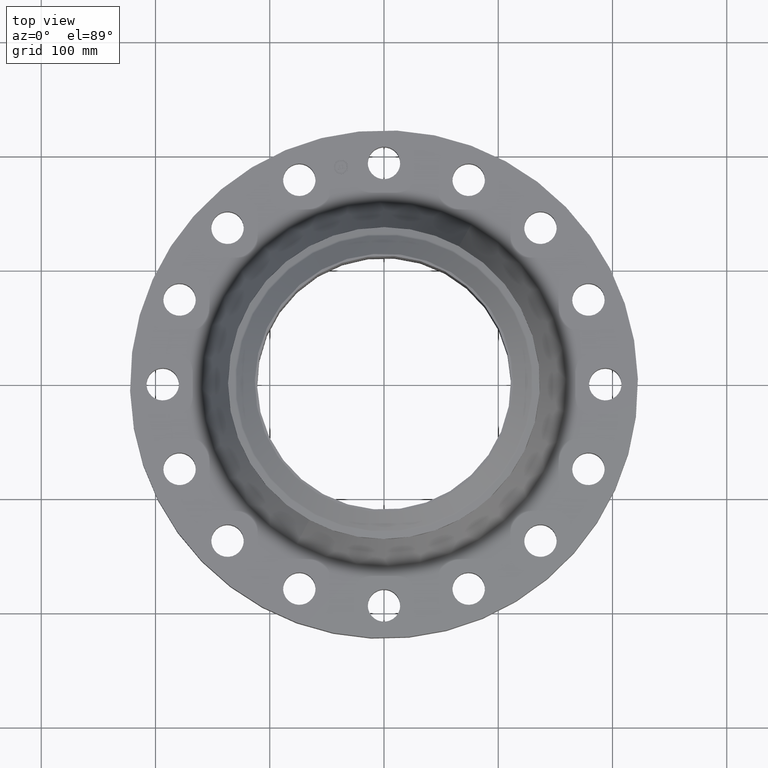
[diagram: clean part render]
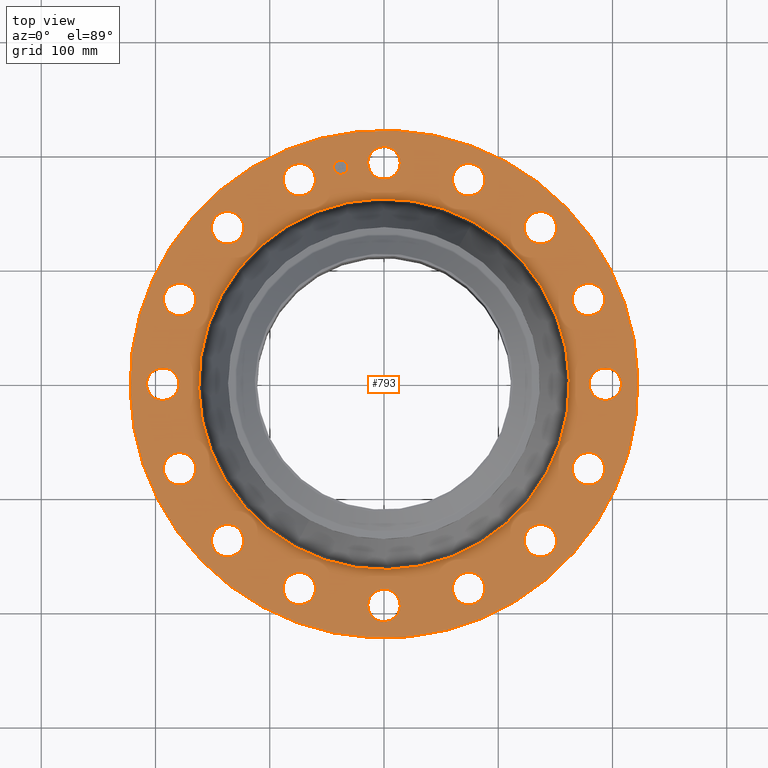
[diagram: same view with one face highlighted and labeled with its STEP entity id]
A machine part, top view. The second image highlights one B-rep face of the part: STEP entity #793.
In plain terms, the highlighted planar face has unit normal (0, 0, -1).
Its self-contained STEP definition (entity closure, byte-faithful):
#65=AXIS2_PLACEMENT_3D('Circle Axis2P3D',#63,#64,$) ;
#463=AXIS2_PLACEMENT_3D('Plane Axis2P3D',#460,#461,#462) ;
#467=AXIS2_PLACEMENT_3D('Circle Axis2P3D',#465,#466,$) ;
#476=AXIS2_PLACEMENT_3D('Circle Axis2P3D',#474,#475,$) ;
#489=AXIS2_PLACEMENT_3D('Circle Axis2P3D',#487,#488,$) ;
#498=AXIS2_PLACEMENT_3D('Circle Axis2P3D',#496,#497,$) ;
#507=AXIS2_PLACEMENT_3D('Circle Axis2P3D',#505,#506,$) ;
#516=AXIS2_PLACEMENT_3D('Circle Axis2P3D',#514,#515,$) ;
#525=AXIS2_PLACEMENT_3D('Circle Axis2P3D',#523,#524,$) ;
#534=AXIS2_PLACEMENT_3D('Circle Axis2P3D',#532,#533,$) ;
#543=AXIS2_PLACEMENT_3D('Circle Axis2P3D',#541,#542,$) ;
#552=AXIS2_PLACEMENT_3D('Circle Axis2P3D',#550,#551,$) ;
#561=AXIS2_PLACEMENT_3D('Circle Axis2P3D',#559,#560,$) ;
#570=AXIS2_PLACEMENT_3D('Circle Axis2P3D',#568,#569,$) ;
#579=AXIS2_PLACEMENT_3D('Circle Axis2P3D',#577,#578,$) ;
#588=AXIS2_PLACEMENT_3D('Circle Axis2P3D',#586,#587,$) ;
#597=AXIS2_PLACEMENT_3D('Circle Axis2P3D',#595,#596,$) ;
#606=AXIS2_PLACEMENT_3D('Circle Axis2P3D',#604,#605,$) ;
#615=AXIS2_PLACEMENT_3D('Circle Axis2P3D',#613,#614,$) ;
#624=AXIS2_PLACEMENT_3D('Circle Axis2P3D',#622,#623,$) ;
#633=AXIS2_PLACEMENT_3D('Circle Axis2P3D',#631,#632,$) ;
#642=AXIS2_PLACEMENT_3D('Circle Axis2P3D',#640,#641,$) ;
#651=AXIS2_PLACEMENT_3D('Circle Axis2P3D',#649,#650,$) ;
#660=AXIS2_PLACEMENT_3D('Circle Axis2P3D',#658,#659,$) ;
#669=AXIS2_PLACEMENT_3D('Circle Axis2P3D',#667,#668,$) ;
#678=AXIS2_PLACEMENT_3D('Circle Axis2P3D',#676,#677,$) ;
#687=AXIS2_PLACEMENT_3D('Circle Axis2P3D',#685,#686,$) ;
#696=AXIS2_PLACEMENT_3D('Circle Axis2P3D',#694,#695,$) ;
#705=AXIS2_PLACEMENT_3D('Circle Axis2P3D',#703,#704,$) ;
#714=AXIS2_PLACEMENT_3D('Circle Axis2P3D',#712,#713,$) ;
#723=AXIS2_PLACEMENT_3D('Circle Axis2P3D',#721,#722,$) ;
#732=AXIS2_PLACEMENT_3D('Circle Axis2P3D',#730,#731,$) ;
#741=AXIS2_PLACEMENT_3D('Circle Axis2P3D',#739,#740,$) ;
#750=AXIS2_PLACEMENT_3D('Circle Axis2P3D',#748,#749,$) ;
#759=AXIS2_PLACEMENT_3D('Circle Axis2P3D',#757,#758,$) ;
#768=AXIS2_PLACEMENT_3D('Circle Axis2P3D',#766,#767,$) ;
#777=AXIS2_PLACEMENT_3D('Circle Axis2P3D',#775,#776,$) ;
#786=AXIS2_PLACEMENT_3D('Circle Axis2P3D',#784,#785,$) ;
#46=CARTESIAN_POINT('Vertex',(-0.49144623466,7.89347830165,1.80999999999)) ;
#60=CARTESIAN_POINT('Vertex',(0.49144623466,7.35652169841,1.80999999999)) ;
#63=CARTESIAN_POINT('Axis2P3D Location',(0.,7.62500000003,1.80999999999)) ;
#106=CARTESIAN_POINT('Control Point',(0.49144623466,7.35652169841,1.80999999999)) ;
#107=CARTESIAN_POINT('Control Point',(0.449273761659,7.27932550439,1.80999999999)) ;
#108=CARTESIAN_POINT('Control Point',(0.391943851407,7.21040985608,1.80999999999)) ;
#109=CARTESIAN_POINT('Control Point',(0.321612228624,7.1537563852,1.80999999999)) ;
#110=CARTESIAN_POINT('Control Point',(0.162524834083,7.07107905055,1.80999999999)) ;
#111=CARTESIAN_POINT('Control Point',(-0.0160133470284,7.05469434265,1.81)) ;
#112=CARTESIAN_POINT('Control Point',(-0.105805367865,7.06436625662,1.81)) ;
#113=CARTESIAN_POINT('Control Point',(-0.27675884733,7.11839632812,1.81)) ;
#114=CARTESIAN_POINT('Control Point',(-0.414590143954,7.23305614862,1.81)) ;
#115=CARTESIAN_POINT('Control Point',(-0.471243614831,7.30338777141,1.81)) ;
#116=CARTESIAN_POINT('Control Point',(-0.553920949483,7.46247516595,1.81)) ;
#117=CARTESIAN_POINT('Control Point',(-0.570305657377,7.64101334706,1.81000000001)) ;
#118=CARTESIAN_POINT('Control Point',(-0.56063374341,7.7308053679,1.81000000001)) ;
#119=CARTESIAN_POINT('Control Point',(-0.533618707661,7.81628210763,1.81000000001)) ;
#120=CARTESIAN_POINT('Control Point',(-0.49144623466,7.89347830165,1.81000000001)) ;
#460=CARTESIAN_POINT('Axis2P3D Location',(0.,8.75000000003,1.81000000001)) ;
#465=CARTESIAN_POINT('Axis2P3D Location',(-1.28132675074E-011,3.32332586647E-013,1.81000000001)) ;
#469=CARTESIAN_POINT('Vertex',(4.1949734628,7.67884741657,1.81000000002)) ;
#471=CARTESIAN_POINT('Vertex',(-4.1949734628,-7.67884741657,1.81000000002)) ;
#474=CARTESIAN_POINT('Axis2P3D Location',(1.28132675074E-011,-1.36659187903E-011,1.81000000001)) ;
#487=CARTESIAN_POINT('Axis2P3D Location',(4.36664877485E-011,-3.05208876545E-011,1.81000000001)) ;
#491=CARTESIAN_POINT('Vertex',(-3.06143875276,-5.6039260477,1.81000000001)) ;
#493=CARTESIAN_POINT('Vertex',(3.06143875276,5.6039260477,1.81000000001)) ;
#496=CARTESIAN_POINT('Axis2P3D Location',(-4.36664877485E-011,1.71873014508E-011,1.81000000001)) ;
#505=CARTESIAN_POINT('Axis2P3D Location',(2.91796117182,7.04458143543,1.81000000001)) ;
#509=CARTESIAN_POINT('Vertex',(3.26925609136,6.60847149572,1.81000000001)) ;
#511=CARTESIAN_POINT('Vertex',(2.56666625225,7.48069137512,1.80999999999)) ;
#514=CARTESIAN_POINT('Axis2P3D Location',(2.91796117181,7.04458143543,1.81000000001)) ;
#523=CARTESIAN_POINT('Axis2P3D Location',(5.39168920655,5.39168920656,1.81000000001)) ;
#527=CARTESIAN_POINT('Vertex',(5.54935134401,4.85434141378,1.80999999999)) ;
#529=CARTESIAN_POINT('Vertex',(5.23402706913,5.92903699936,1.80999999999)) ;
#532=CARTESIAN_POINT('Axis2P3D Location',(5.3916892066,5.39168920658,1.81000000001)) ;
#541=CARTESIAN_POINT('Axis2P3D Location',(7.0445814354,2.91796117181,1.81000000001)) ;
#545=CARTESIAN_POINT('Vertex',(6.98460815951,2.3611818563,1.81000000001)) ;
#547=CARTESIAN_POINT('Vertex',(7.10455471132,3.47474048731,1.80999999999)) ;
#550=CARTESIAN_POINT('Axis2P3D Location',(7.0445814354,2.91796117181,1.81000000001)) ;
#559=CARTESIAN_POINT('Axis2P3D Location',(7.62500000004,-1.36659187903E-011,1.81000000001)) ;
#563=CARTESIAN_POINT('Vertex',(7.35652169841,-0.49144623466,1.80999999999)) ;
#565=CARTESIAN_POINT('Vertex',(7.89347830165,0.49144623466,1.80999999999)) ;
#568=CARTESIAN_POINT('Axis2P3D Location',(7.62500000002,3.32332586647E-013,1.81000000001)) ;
#577=CARTESIAN_POINT('Axis2P3D Location',(7.04458143544,-2.91796117178,1.81000000001)) ;
#581=CARTESIAN_POINT('Vertex',(6.60847149577,-3.26925609133,1.81000000001)) ;
#583=CARTESIAN_POINT('Vertex',(7.48069137512,-2.56666625225,1.80999999999)) ;
#586=CARTESIAN_POINT('Axis2P3D Location',(7.04458143547,-2.91796117183,1.81000000001)) ;
#595=CARTESIAN_POINT('Axis2P3D Location',(5.39168920658,-5.39168920661,1.81000000001)) ;
#599=CARTESIAN_POINT('Vertex',(4.85434141378,-5.54935134401,1.80999999999)) ;
#601=CARTESIAN_POINT('Vertex',(5.92903699936,-5.23402706913,1.80999999999)) ;
#604=CARTESIAN_POINT('Axis2P3D Location',(5.39168920657,-5.39168920656,1.81000000001)) ;
#613=CARTESIAN_POINT('Axis2P3D Location',(2.91796117178,-7.04458143544,1.81000000001)) ;
#617=CARTESIAN_POINT('Vertex',(2.36118185627,-6.98460815955,1.81000000001)) ;
#619=CARTESIAN_POINT('Vertex',(3.47474048731,-7.10455471132,1.80999999999)) ;
#622=CARTESIAN_POINT('Axis2P3D Location',(2.91796117178,-7.04458143544,1.81000000001)) ;
#631=CARTESIAN_POINT('Axis2P3D Location',(6.9991431723E-012,-7.62500000002,1.81000000001)) ;
#635=CARTESIAN_POINT('Vertex',(-0.49144623466,-7.35652169841,1.80999999999)) ;
#637=CARTESIAN_POINT('Vertex',(0.49144623466,-7.89347830165,1.80999999999)) ;
#640=CARTESIAN_POINT('Axis2P3D Location',(-6.9991431723E-012,-7.62500000005,1.81000000001)) ;
#649=CARTESIAN_POINT('Axis2P3D Location',(-2.91796117182,-7.04458143545,1.81000000001)) ;
#653=CARTESIAN_POINT('Vertex',(-3.26925609136,-6.60847149574,1.81000000001)) ;
#655=CARTESIAN_POINT('Vertex',(-2.56666625225,-7.48069137512,1.80999999999)) ;
#658=CARTESIAN_POINT('Axis2P3D Location',(-2.91796117177,-7.04458143541,1.81000000001)) ;
#667=CARTESIAN_POINT('Axis2P3D Location',(-5.39168920655,-5.39168920658,1.81000000001)) ;
#671=CARTESIAN_POINT('Vertex',(-5.54935134401,-4.85434141378,1.80999999999)) ;
#673=CARTESIAN_POINT('Vertex',(-5.23402706913,-5.92903699936,1.80999999999)) ;
#676=CARTESIAN_POINT('Axis2P3D Location',(-5.3916892066,-5.39168920659,1.81000000001)) ;
#685=CARTESIAN_POINT('Axis2P3D Location',(-7.0445814354,-2.91796117182,1.81000000001)) ;
#689=CARTESIAN_POINT('Vertex',(-6.98460815951,-2.36118185632,1.81000000001)) ;
#691=CARTESIAN_POINT('Vertex',(-7.10455471132,-3.47474048731,1.80999999999)) ;
#694=CARTESIAN_POINT('Axis2P3D Location',(-7.0445814354,-2.91796117182,1.81000000001)) ;
#703=CARTESIAN_POINT('Axis2P3D Location',(-7.62500000004,3.32332586647E-013,1.81000000001)) ;
#707=CARTESIAN_POINT('Vertex',(-7.35652169841,0.49144623466,1.80999999999)) ;
#709=CARTESIAN_POINT('Vertex',(-7.89347830165,-0.49144623466,1.80999999999)) ;
#712=CARTESIAN_POINT('Axis2P3D Location',(-7.62500000002,-1.36659187903E-011,1.81000000001)) ;
#721=CARTESIAN_POINT('Axis2P3D Location',(-7.04458143544,2.91796117177,1.81000000001)) ;
#725=CARTESIAN_POINT('Vertex',(-6.60847149577,3.26925609132,1.81000000001)) ;
#727=CARTESIAN_POINT('Vertex',(-7.48069137512,2.56666625225,1.80999999999)) ;
#730=CARTESIAN_POINT('Axis2P3D Location',(-7.04458143547,2.91796117181,1.81000000001)) ;
#739=CARTESIAN_POINT('Axis2P3D Location',(-5.39168920658,5.39168920659,1.81000000001)) ;
#743=CARTESIAN_POINT('Vertex',(-4.85434141378,5.54935134401,1.80999999999)) ;
#745=CARTESIAN_POINT('Vertex',(-5.92903699936,5.23402706913,1.80999999999)) ;
#748=CARTESIAN_POINT('Axis2P3D Location',(-5.39168920657,5.39168920655,1.81000000001)) ;
#757=CARTESIAN_POINT('Axis2P3D Location',(-2.91796117178,7.04458143543,1.81000000001)) ;
#761=CARTESIAN_POINT('Vertex',(-2.36118185627,6.98460815954,1.81000000001)) ;
#763=CARTESIAN_POINT('Vertex',(-3.47474048731,7.10455471132,1.80999999999)) ;
#766=CARTESIAN_POINT('Axis2P3D Location',(-2.91796117178,7.04458143543,1.81000000001)) ;
#775=CARTESIAN_POINT('Axis2P3D Location',(-1.48756370538,7.47848776307,1.81000000001)) ;
#779=CARTESIAN_POINT('Vertex',(-1.73030806229,7.43020290842,1.81000000001)) ;
#781=CARTESIAN_POINT('Vertex',(-1.24481934849,7.52677261781,1.81000000001)) ;
#784=CARTESIAN_POINT('Axis2P3D Location',(-1.48756370538,7.47848776307,1.81000000001)) ;
#64=DIRECTION('Axis2P3D Direction',(0.,-0.,-0.0393700787402)) ;
#461=DIRECTION('Axis2P3D Direction',(0.,0.,-0.0393700787402)) ;
#462=DIRECTION('Axis2P3D XDirection',(0.0393700787402,0.,0.)) ;
#466=DIRECTION('Axis2P3D Direction',(0.,0.,-0.0393700787402)) ;
#475=DIRECTION('Axis2P3D Direction',(0.,0.,-0.0393700787402)) ;
#488=DIRECTION('Axis2P3D Direction',(0.,0.,-0.0393700787402)) ;
#497=DIRECTION('Axis2P3D Direction',(0.,0.,-0.0393700787402)) ;
#506=DIRECTION('Axis2P3D Direction',(0.,0.,-0.0393700787402)) ;
#515=DIRECTION('Axis2P3D Direction',(0.,0.,-0.0393700787402)) ;
#524=DIRECTION('Axis2P3D Direction',(0.,0.,-0.0393700787402)) ;
#533=DIRECTION('Axis2P3D Direction',(0.,0.,-0.0393700787402)) ;
#542=DIRECTION('Axis2P3D Direction',(0.,0.,-0.0393700787402)) ;
#551=DIRECTION('Axis2P3D Direction',(0.,0.,-0.0393700787402)) ;
#560=DIRECTION('Axis2P3D Direction',(0.,0.,-0.0393700787402)) ;
#569=DIRECTION('Axis2P3D Direction',(0.,0.,-0.0393700787402)) ;
#578=DIRECTION('Axis2P3D Direction',(0.,0.,-0.0393700787402)) ;
#587=DIRECTION('Axis2P3D Direction',(0.,0.,-0.0393700787402)) ;
#596=DIRECTION('Axis2P3D Direction',(0.,0.,-0.0393700787402)) ;
#605=DIRECTION('Axis2P3D Direction',(0.,0.,-0.0393700787402)) ;
#614=DIRECTION('Axis2P3D Direction',(0.,0.,-0.0393700787402)) ;
#623=DIRECTION('Axis2P3D Direction',(0.,0.,-0.0393700787402)) ;
#632=DIRECTION('Axis2P3D Direction',(0.,0.,-0.0393700787402)) ;
#641=DIRECTION('Axis2P3D Direction',(0.,0.,-0.0393700787402)) ;
#650=DIRECTION('Axis2P3D Direction',(0.,0.,-0.0393700787402)) ;
#659=DIRECTION('Axis2P3D Direction',(0.,0.,-0.0393700787402)) ;
#668=DIRECTION('Axis2P3D Direction',(0.,0.,-0.0393700787402)) ;
#677=DIRECTION('Axis2P3D Direction',(0.,0.,-0.0393700787402)) ;
#686=DIRECTION('Axis2P3D Direction',(0.,0.,-0.0393700787402)) ;
#695=DIRECTION('Axis2P3D Direction',(0.,0.,-0.0393700787402)) ;
#704=DIRECTION('Axis2P3D Direction',(0.,0.,-0.0393700787402)) ;
#713=DIRECTION('Axis2P3D Direction',(0.,0.,-0.0393700787402)) ;
#722=DIRECTION('Axis2P3D Direction',(0.,0.,-0.0393700787402)) ;
#731=DIRECTION('Axis2P3D Direction',(0.,0.,-0.0393700787402)) ;
#740=DIRECTION('Axis2P3D Direction',(0.,0.,-0.0393700787402)) ;
#749=DIRECTION('Axis2P3D Direction',(0.,0.,-0.0393700787402)) ;
#758=DIRECTION('Axis2P3D Direction',(0.,0.,-0.0393700787402)) ;
#767=DIRECTION('Axis2P3D Direction',(0.,0.,-0.0393700787402)) ;
#776=DIRECTION('Axis2P3D Direction',(0.,0.,-0.0393700787402)) ;
#785=DIRECTION('Axis2P3D Direction',(0.,0.,-0.0393700787402)) ;
#480=ORIENTED_EDGE('',*,*,#473,.F.) ;
#481=ORIENTED_EDGE('',*,*,#478,.F.) ;
#484=ORIENTED_EDGE('',*,*,#67,.T.) ;
#485=ORIENTED_EDGE('',*,*,#121,.T.) ;
#502=ORIENTED_EDGE('',*,*,#495,.T.) ;
#503=ORIENTED_EDGE('',*,*,#500,.T.) ;
#520=ORIENTED_EDGE('',*,*,#513,.T.) ;
#521=ORIENTED_EDGE('',*,*,#518,.T.) ;
#538=ORIENTED_EDGE('',*,*,#531,.T.) ;
#539=ORIENTED_EDGE('',*,*,#536,.T.) ;
#556=ORIENTED_EDGE('',*,*,#549,.T.) ;
#557=ORIENTED_EDGE('',*,*,#554,.T.) ;
#574=ORIENTED_EDGE('',*,*,#567,.T.) ;
#575=ORIENTED_EDGE('',*,*,#572,.T.) ;
#592=ORIENTED_EDGE('',*,*,#585,.T.) ;
#593=ORIENTED_EDGE('',*,*,#590,.T.) ;
#610=ORIENTED_EDGE('',*,*,#603,.T.) ;
#611=ORIENTED_EDGE('',*,*,#608,.T.) ;
#628=ORIENTED_EDGE('',*,*,#621,.T.) ;
#629=ORIENTED_EDGE('',*,*,#626,.T.) ;
#646=ORIENTED_EDGE('',*,*,#639,.T.) ;
#647=ORIENTED_EDGE('',*,*,#644,.T.) ;
#664=ORIENTED_EDGE('',*,*,#657,.T.) ;
#665=ORIENTED_EDGE('',*,*,#662,.T.) ;
#682=ORIENTED_EDGE('',*,*,#675,.T.) ;
#683=ORIENTED_EDGE('',*,*,#680,.T.) ;
#700=ORIENTED_EDGE('',*,*,#693,.T.) ;
#701=ORIENTED_EDGE('',*,*,#698,.T.) ;
#718=ORIENTED_EDGE('',*,*,#711,.T.) ;
#719=ORIENTED_EDGE('',*,*,#716,.T.) ;
#736=ORIENTED_EDGE('',*,*,#729,.T.) ;
#737=ORIENTED_EDGE('',*,*,#734,.T.) ;
#754=ORIENTED_EDGE('',*,*,#747,.T.) ;
#755=ORIENTED_EDGE('',*,*,#752,.T.) ;
#772=ORIENTED_EDGE('',*,*,#765,.T.) ;
#773=ORIENTED_EDGE('',*,*,#770,.T.) ;
#790=ORIENTED_EDGE('',*,*,#783,.T.) ;
#791=ORIENTED_EDGE('',*,*,#788,.T.) ;
#486=FACE_BOUND('',#483,.T.) ;
#504=FACE_BOUND('',#501,.T.) ;
#522=FACE_BOUND('',#519,.T.) ;
#540=FACE_BOUND('',#537,.T.) ;
#558=FACE_BOUND('',#555,.T.) ;
#576=FACE_BOUND('',#573,.T.) ;
#594=FACE_BOUND('',#591,.T.) ;
#612=FACE_BOUND('',#609,.T.) ;
#630=FACE_BOUND('',#627,.T.) ;
#648=FACE_BOUND('',#645,.T.) ;
#666=FACE_BOUND('',#663,.T.) ;
#684=FACE_BOUND('',#681,.T.) ;
#702=FACE_BOUND('',#699,.T.) ;
#720=FACE_BOUND('',#717,.T.) ;
#738=FACE_BOUND('',#735,.T.) ;
#756=FACE_BOUND('',#753,.T.) ;
#774=FACE_BOUND('',#771,.T.) ;
#792=FACE_BOUND('',#789,.T.) ;
#793=ADVANCED_FACE('PartBody',(#482,#486,#504,#522,#540,#558,#576,#594,#612,#630,#648,#666,#684,#702,#720,#738,#756,#774,#792),#464,.F.) ;
#105=B_SPLINE_CURVE_WITH_KNOTS('',5,(#106,#107,#108,#109,#110,#111,#112,#113,#114,#115,#116,#117,#118,#119,#120),.UNSPECIFIED.,.F.,.U.,(6,3,3,3,6),(-22.3430069524,-11.1715034762,0.,11.1715034762,22.3430069524),.UNSPECIFIED.) ;
#66=CIRCLE('generated circle',#65,0.560000000002) ;
#468=CIRCLE('generated circle',#467,8.75000000003) ;
#477=CIRCLE('generated circle',#476,8.75000000003) ;
#490=CIRCLE('generated circle',#489,6.38563970054) ;
#499=CIRCLE('generated circle',#498,6.38563970054) ;
#508=CIRCLE('generated circle',#507,0.56000000001) ;
#517=CIRCLE('generated circle',#516,0.56000000001) ;
#526=CIRCLE('generated circle',#525,0.55999999999) ;
#535=CIRCLE('generated circle',#534,0.55999999999) ;
#544=CIRCLE('generated circle',#543,0.559999999995) ;
#553=CIRCLE('generated circle',#552,0.559999999995) ;
#562=CIRCLE('generated circle',#561,0.560000000003) ;
#571=CIRCLE('generated circle',#570,0.560000000003) ;
#580=CIRCLE('generated circle',#579,0.559999999982) ;
#589=CIRCLE('generated circle',#588,0.559999999982) ;
#598=CIRCLE('generated circle',#597,0.560000000015) ;
#607=CIRCLE('generated circle',#606,0.560000000015) ;
#616=CIRCLE('generated circle',#615,0.559999999995) ;
#625=CIRCLE('generated circle',#624,0.559999999995) ;
#634=CIRCLE('generated circle',#633,0.559999999989) ;
#643=CIRCLE('generated circle',#642,0.559999999989) ;
#652=CIRCLE('generated circle',#651,0.56000000001) ;
#661=CIRCLE('generated circle',#660,0.56000000001) ;
#670=CIRCLE('generated circle',#669,0.55999999999) ;
#679=CIRCLE('generated circle',#678,0.55999999999) ;
#688=CIRCLE('generated circle',#687,0.559999999995) ;
#697=CIRCLE('generated circle',#696,0.559999999995) ;
#706=CIRCLE('generated circle',#705,0.560000000003) ;
#715=CIRCLE('generated circle',#714,0.560000000003) ;
#724=CIRCLE('generated circle',#723,0.559999999982) ;
#733=CIRCLE('generated circle',#732,0.559999999982) ;
#742=CIRCLE('generated circle',#741,0.560000000015) ;
#751=CIRCLE('generated circle',#750,0.560000000015) ;
#760=CIRCLE('generated circle',#759,0.559999999995) ;
#769=CIRCLE('generated circle',#768,0.559999999995) ;
#778=CIRCLE('generated circle',#777,0.247499999999) ;
#787=CIRCLE('generated circle',#786,0.247499999999) ;
#67=EDGE_CURVE('',#47,#61,#66,.T.) ;
#121=EDGE_CURVE('',#61,#47,#105,.T.) ;
#473=EDGE_CURVE('',#470,#472,#468,.T.) ;
#478=EDGE_CURVE('',#472,#470,#477,.T.) ;
#495=EDGE_CURVE('',#492,#494,#490,.T.) ;
#500=EDGE_CURVE('',#494,#492,#499,.T.) ;
#513=EDGE_CURVE('',#510,#512,#508,.T.) ;
#518=EDGE_CURVE('',#512,#510,#517,.T.) ;
#531=EDGE_CURVE('',#528,#530,#526,.T.) ;
#536=EDGE_CURVE('',#530,#528,#535,.T.) ;
#549=EDGE_CURVE('',#546,#548,#544,.T.) ;
#554=EDGE_CURVE('',#548,#546,#553,.T.) ;
#567=EDGE_CURVE('',#564,#566,#562,.T.) ;
#572=EDGE_CURVE('',#566,#564,#571,.T.) ;
#585=EDGE_CURVE('',#582,#584,#580,.T.) ;
#590=EDGE_CURVE('',#584,#582,#589,.T.) ;
#603=EDGE_CURVE('',#600,#602,#598,.T.) ;
#608=EDGE_CURVE('',#602,#600,#607,.T.) ;
#621=EDGE_CURVE('',#618,#620,#616,.T.) ;
#626=EDGE_CURVE('',#620,#618,#625,.T.) ;
#639=EDGE_CURVE('',#636,#638,#634,.T.) ;
#644=EDGE_CURVE('',#638,#636,#643,.T.) ;
#657=EDGE_CURVE('',#654,#656,#652,.T.) ;
#662=EDGE_CURVE('',#656,#654,#661,.T.) ;
#675=EDGE_CURVE('',#672,#674,#670,.T.) ;
#680=EDGE_CURVE('',#674,#672,#679,.T.) ;
#693=EDGE_CURVE('',#690,#692,#688,.T.) ;
#698=EDGE_CURVE('',#692,#690,#697,.T.) ;
#711=EDGE_CURVE('',#708,#710,#706,.T.) ;
#716=EDGE_CURVE('',#710,#708,#715,.T.) ;
#729=EDGE_CURVE('',#726,#728,#724,.T.) ;
#734=EDGE_CURVE('',#728,#726,#733,.T.) ;
#747=EDGE_CURVE('',#744,#746,#742,.T.) ;
#752=EDGE_CURVE('',#746,#744,#751,.T.) ;
#765=EDGE_CURVE('',#762,#764,#760,.T.) ;
#770=EDGE_CURVE('',#764,#762,#769,.T.) ;
#783=EDGE_CURVE('',#780,#782,#778,.T.) ;
#788=EDGE_CURVE('',#782,#780,#787,.T.) ;
#479=EDGE_LOOP('',(#480,#481)) ;
#483=EDGE_LOOP('',(#484,#485)) ;
#501=EDGE_LOOP('',(#502,#503)) ;
#519=EDGE_LOOP('',(#520,#521)) ;
#537=EDGE_LOOP('',(#538,#539)) ;
#555=EDGE_LOOP('',(#556,#557)) ;
#573=EDGE_LOOP('',(#574,#575)) ;
#591=EDGE_LOOP('',(#592,#593)) ;
#609=EDGE_LOOP('',(#610,#611)) ;
#627=EDGE_LOOP('',(#628,#629)) ;
#645=EDGE_LOOP('',(#646,#647)) ;
#663=EDGE_LOOP('',(#664,#665)) ;
#681=EDGE_LOOP('',(#682,#683)) ;
#699=EDGE_LOOP('',(#700,#701)) ;
#717=EDGE_LOOP('',(#718,#719)) ;
#735=EDGE_LOOP('',(#736,#737)) ;
#753=EDGE_LOOP('',(#754,#755)) ;
#771=EDGE_LOOP('',(#772,#773)) ;
#789=EDGE_LOOP('',(#790,#791)) ;
#482=FACE_OUTER_BOUND('',#479,.T.) ;
#464=PLANE('',#463) ;
#47=VERTEX_POINT('',#46) ;
#61=VERTEX_POINT('',#60) ;
#470=VERTEX_POINT('',#469) ;
#472=VERTEX_POINT('',#471) ;
#492=VERTEX_POINT('',#491) ;
#494=VERTEX_POINT('',#493) ;
#510=VERTEX_POINT('',#509) ;
#512=VERTEX_POINT('',#511) ;
#528=VERTEX_POINT('',#527) ;
#530=VERTEX_POINT('',#529) ;
#546=VERTEX_POINT('',#545) ;
#548=VERTEX_POINT('',#547) ;
#564=VERTEX_POINT('',#563) ;
#566=VERTEX_POINT('',#565) ;
#582=VERTEX_POINT('',#581) ;
#584=VERTEX_POINT('',#583) ;
#600=VERTEX_POINT('',#599) ;
#602=VERTEX_POINT('',#601) ;
#618=VERTEX_POINT('',#617) ;
#620=VERTEX_POINT('',#619) ;
#636=VERTEX_POINT('',#635) ;
#638=VERTEX_POINT('',#637) ;
#654=VERTEX_POINT('',#653) ;
#656=VERTEX_POINT('',#655) ;
#672=VERTEX_POINT('',#671) ;
#674=VERTEX_POINT('',#673) ;
#690=VERTEX_POINT('',#689) ;
#692=VERTEX_POINT('',#691) ;
#708=VERTEX_POINT('',#707) ;
#710=VERTEX_POINT('',#709) ;
#726=VERTEX_POINT('',#725) ;
#728=VERTEX_POINT('',#727) ;
#744=VERTEX_POINT('',#743) ;
#746=VERTEX_POINT('',#745) ;
#762=VERTEX_POINT('',#761) ;
#764=VERTEX_POINT('',#763) ;
#780=VERTEX_POINT('',#779) ;
#782=VERTEX_POINT('',#781) ;